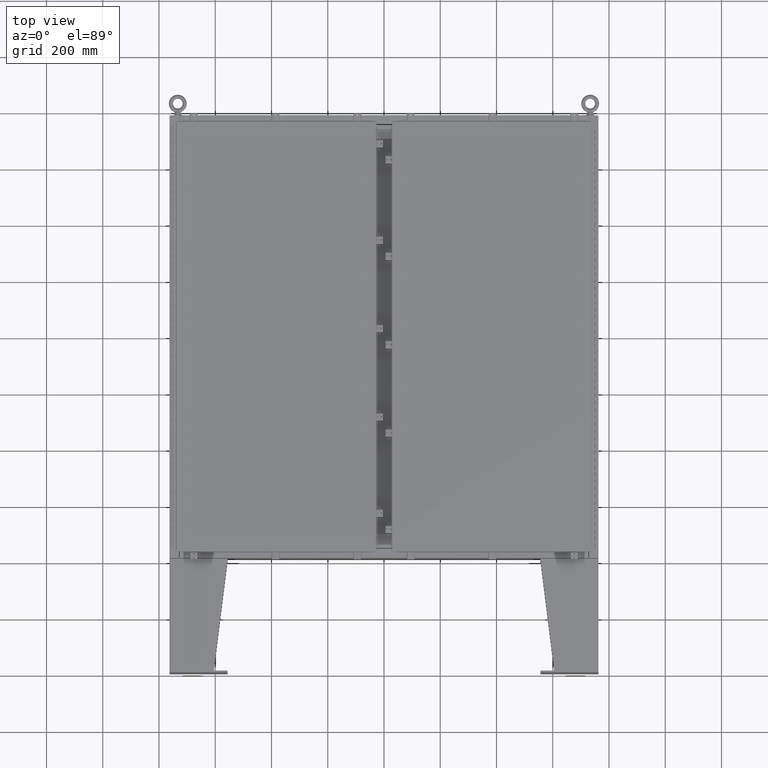
[diagram: clean part render]
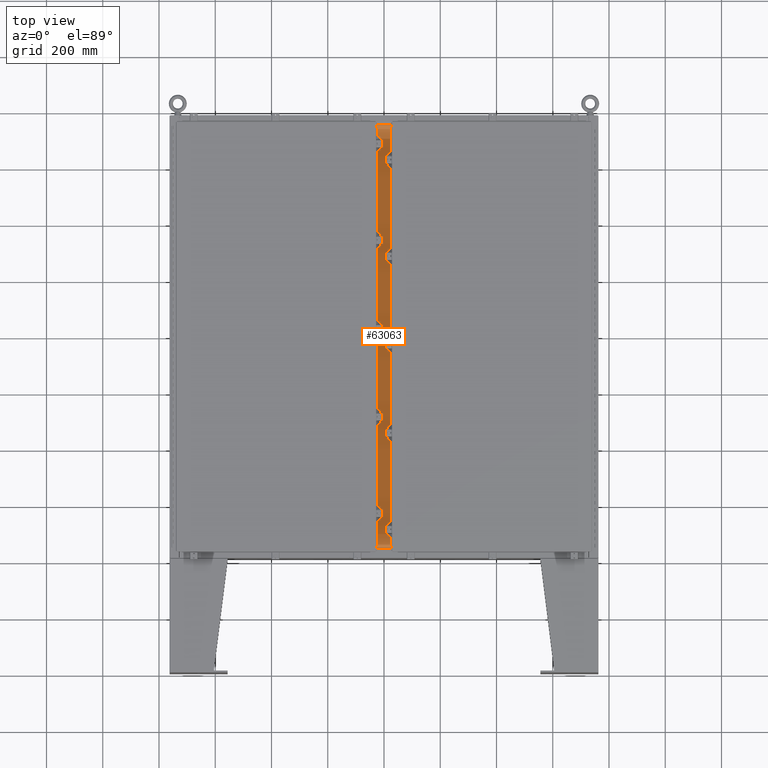
[diagram: same view with one face highlighted and labeled with its STEP entity id]
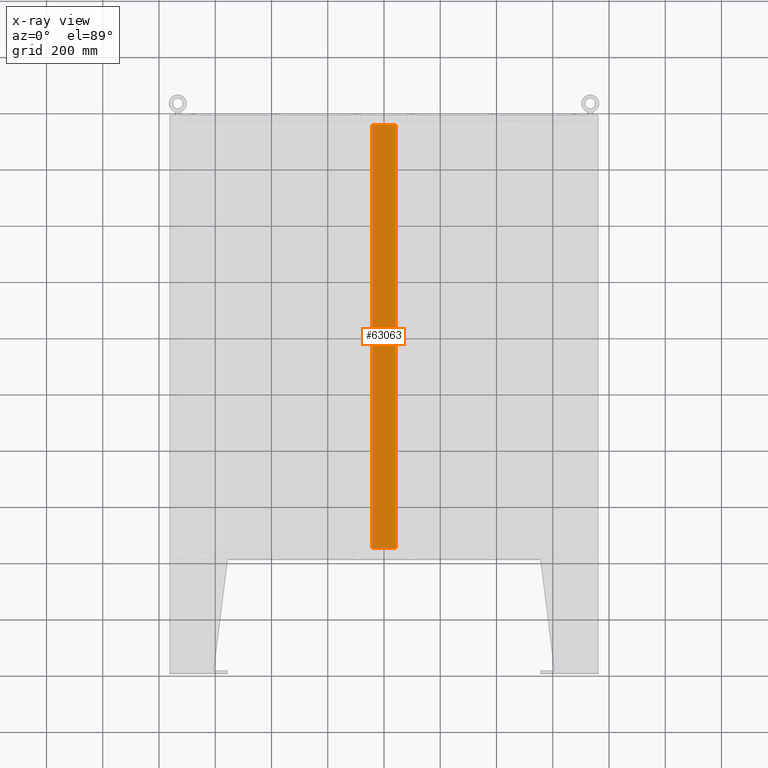
[diagram: x-ray of the same camera — body ghosted, the highlighted face saturated]
A machine part, top view. The second image highlights one B-rep face of the part: STEP entity #63063.
The next image is the same camera in x-ray: the body ghosted, the highlighted face saturated — about 0% of this face is hidden behind the body in this view.
In plain terms, the highlighted planar face has unit normal (0, 0, -1).
Its self-contained STEP definition (entity closure, byte-faithful):
#3961 = ORIENTED_EDGE ( 'NONE', *, *, #52439, .F. ) ;
#6621 = EDGE_CURVE ( 'NONE', #34670, #34453, #9599, .T. ) ;
#9289 = VERTEX_POINT ( 'NONE', #58351 ) ;
#9599 = LINE ( 'NONE', #48668, #38282 ) ;
#10360 = DIRECTION ( 'NONE',  ( -1.000000000000000000, 0.0000000000000000000, -0.0000000000000000000 ) ) ;
#10937 = LINE ( 'NONE', #64753, #25284 ) ;
#16406 = DIRECTION ( 'NONE',  ( -0.0000000000000000000, -1.000000000000000000, -0.0000000000000000000 ) ) ;
#19587 = LINE ( 'NONE', #68138, #44935 ) ;
#21708 = DIRECTION ( 'NONE',  ( 1.000000000000000000, 0.0000000000000000000, 0.0000000000000000000 ) ) ;
#22233 = VERTEX_POINT ( 'NONE', #30996 ) ;
#22715 = ORIENTED_EDGE ( 'NONE', *, *, #37938, .T. ) ;
#25008 = EDGE_LOOP ( 'NONE', ( #3961, #22715, #47238, #69669 ) ) ;
#25284 = VECTOR ( 'NONE', #21708, 39.37007874015748100 ) ;
#30996 = CARTESIAN_POINT ( 'NONE',  ( -1.662299999999999700, -29.62500000000000000, -2.283654182203719900E-016 ) ) ;
#32763 = CARTESIAN_POINT ( 'NONE',  ( 1.662300000000000100, -29.62500000000000000, 4.481938114605432000E-017 ) ) ;
#34453 = VERTEX_POINT ( 'NONE', #32763 ) ;
#34670 = VERTEX_POINT ( 'NONE', #46714 ) ;
#34721 = FACE_OUTER_BOUND ( 'NONE', #25008, .T. ) ;
#37249 = PLANE ( 'NONE',  #52750 ) ;
#37938 = EDGE_CURVE ( 'NONE', #22233, #34453, #10937, .T. ) ;
#38282 = VECTOR ( 'NONE', #16406, 39.37007874015748100 ) ;
#39942 = LINE ( 'NONE', #52528, #50848 ) ;
#42691 = DIRECTION ( 'NONE',  ( 0.0000000000000000000, 0.0000000000000000000, -1.000000000000000000 ) ) ;
#44935 = VECTOR ( 'NONE', #46827, 39.37007874015748100 ) ;
#46714 = CARTESIAN_POINT ( 'NONE',  ( 1.662300000000000100, 29.62500000000000000, 4.481938114605432000E-017 ) ) ;
#46827 = DIRECTION ( 'NONE',  ( -0.0000000000000000000, 1.000000000000000000, -0.0000000000000000000 ) ) ;
#47238 = ORIENTED_EDGE ( 'NONE', *, *, #6621, .F. ) ;
#47833 = CARTESIAN_POINT ( 'NONE',  ( 1.750000000000000200, 29.62500000000000000, 0.0000000000000000000 ) ) ;
#48668 = CARTESIAN_POINT ( 'NONE',  ( 1.662300000000000100, 29.62500000000000000, 4.481938114605432000E-017 ) ) ;
#50848 = VECTOR ( 'NONE', #57889, 39.37007874015748100 ) ;
#52439 = EDGE_CURVE ( 'NONE', #22233, #9289, #19587, .T. ) ;
#52528 = CARTESIAN_POINT ( 'NONE',  ( -1.749999999999999600, 29.62500000000000000, 0.0000000000000000000 ) ) ;
#52750 = AXIS2_PLACEMENT_3D ( 'NONE', #47833, #42691, #10360 ) ;
#57889 = DIRECTION ( 'NONE',  ( -1.000000000000000000, -0.0000000000000000000, -0.0000000000000000000 ) ) ;
#58351 = CARTESIAN_POINT ( 'NONE',  ( -1.662299999999999700, 29.62500000000000000, -2.283654182203719900E-016 ) ) ;
#61291 = EDGE_CURVE ( 'NONE', #34670, #9289, #39942, .T. ) ;
#63063 = ADVANCED_FACE ( 'NONE', ( #34721 ), #37249, .F. ) ;
#64753 = CARTESIAN_POINT ( 'NONE',  ( -1.749999999999999600, -29.62500000000000000, 0.0000000000000000000 ) ) ;
#68138 = CARTESIAN_POINT ( 'NONE',  ( -1.662299999999999700, -29.62500000000000000, -2.283654182203719900E-016 ) ) ;
#69669 = ORIENTED_EDGE ( 'NONE', *, *, #61291, .T. ) ;